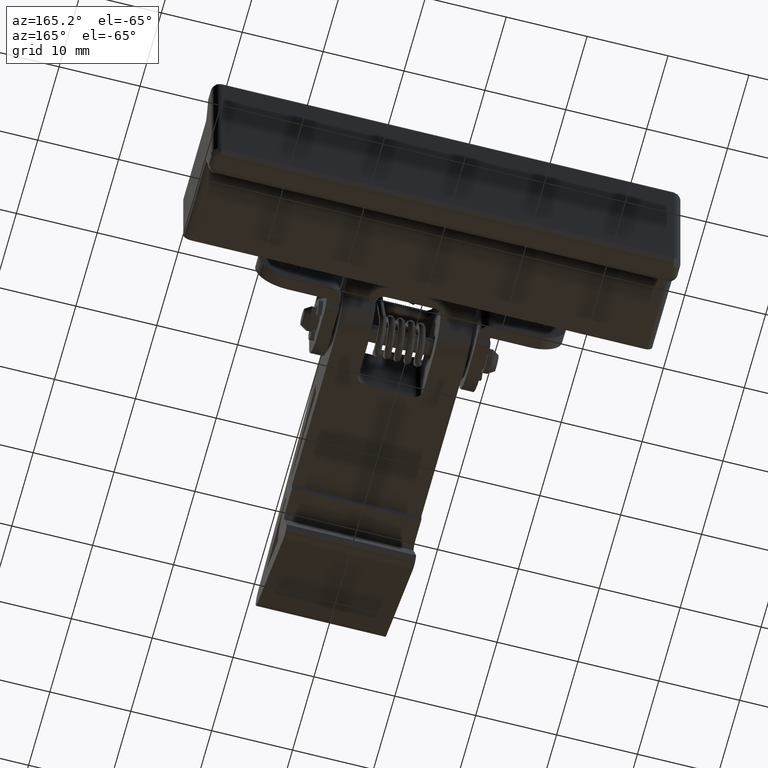
[diagram: clean part render]
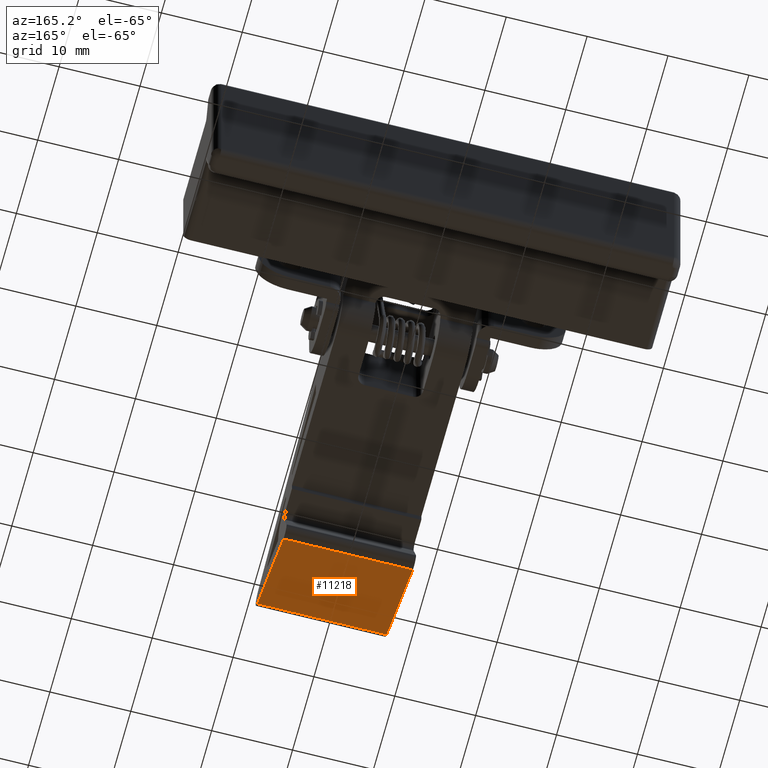
[diagram: same view with one face highlighted and labeled with its STEP entity id]
A machine part, auxiliary view. The second image highlights one B-rep face of the part: STEP entity #11218.
In plain terms, the highlighted face is a freeform B-spline surface patch.
Its self-contained STEP definition (entity closure, byte-faithful):
#11150=CARTESIAN_POINT('',(-8.0,-23.999706136754451,-10.866194921106660));
#11151=VERTEX_POINT('',#11150);
#11167=CARTESIAN_POINT('',(7.999999999999900,-23.999706136754451,-10.866194921106660));
#11168=VERTEX_POINT('',#11167);
#11183=CARTESIAN_POINT('',(7.999999999999900,-23.999706136754451,-10.866194921106660));
#11184=CARTESIAN_POINT('',(-8.0,-23.999706136754451,-10.866194921106660));
#11185=QUASI_UNIFORM_CURVE('',1,(#11183,#11184),.UNSPECIFIED.,.F.,.U.);
#11186=EDGE_CURVE('',#11168,#11151,#11185,.T.);
#11191=CARTESIAN_POINT('',(-8.799199968988889,-23.387826069132370,-11.219186653058900));
#11192=CARTESIAN_POINT('',(-8.799199968988889,-36.861438211915413,-3.446301184805290));
#11193=CARTESIAN_POINT('',(8.799200398142235,-23.387826069132370,-11.219186653058900));
#11194=CARTESIAN_POINT('',(8.799200398142235,-36.861438211915413,-3.446301184805290));
#11195=B_SPLINE_SURFACE_WITH_KNOTS('',1,1,((#11191,#11193),(#11192,#11194)),.UNSPECIFIED.,.F.,.F.,.U.,(2,2),(2,2),(0.0,15.554934029970640),(0.0,17.598400367131120),.UNSPECIFIED.);
#11196=CARTESIAN_POINT('',(-8.0,-36.249557815726703,-3.799293106306610));
#11197=VERTEX_POINT('',#11196);
#11198=CARTESIAN_POINT('',(-8.0,-36.249557815726703,-3.799293106306610));
#11199=CARTESIAN_POINT('',(-8.0,-23.999706136754451,-10.866194921106660));
#11200=QUASI_UNIFORM_CURVE('',1,(#11198,#11199),.UNSPECIFIED.,.F.,.U.);
#11201=EDGE_CURVE('',#11197,#11151,#11200,.T.);
#11202=ORIENTED_EDGE('',*,*,#11201,.T.);
#11203=ORIENTED_EDGE('',*,*,#11186,.F.);
#11204=CARTESIAN_POINT('',(7.999999999999900,-36.249557815726703,-3.799293106306610));
#11205=VERTEX_POINT('',#11204);
#11206=CARTESIAN_POINT('',(7.999999999999900,-36.249557815726703,-3.799293106306610));
#11207=CARTESIAN_POINT('',(7.999999999999900,-23.999706136754451,-10.866194921106660));
#11208=QUASI_UNIFORM_CURVE('',1,(#11206,#11207),.UNSPECIFIED.,.F.,.U.);
#11209=EDGE_CURVE('',#11205,#11168,#11208,.T.);
#11210=ORIENTED_EDGE('',*,*,#11209,.F.);
#11211=CARTESIAN_POINT('',(7.999999999999900,-36.249557815726703,-3.799293106306610));
#11212=CARTESIAN_POINT('',(-8.0,-36.249557815726703,-3.799293106306610));
#11213=QUASI_UNIFORM_CURVE('',1,(#11211,#11212),.UNSPECIFIED.,.F.,.U.);
#11214=EDGE_CURVE('',#11205,#11197,#11213,.T.);
#11215=ORIENTED_EDGE('',*,*,#11214,.T.);
#11216=EDGE_LOOP('',(#11202,#11203,#11210,#11215));
#11217=FACE_OUTER_BOUND('',#11216,.T.);
#11218=ADVANCED_FACE('',(#11217),#11195,.F.);